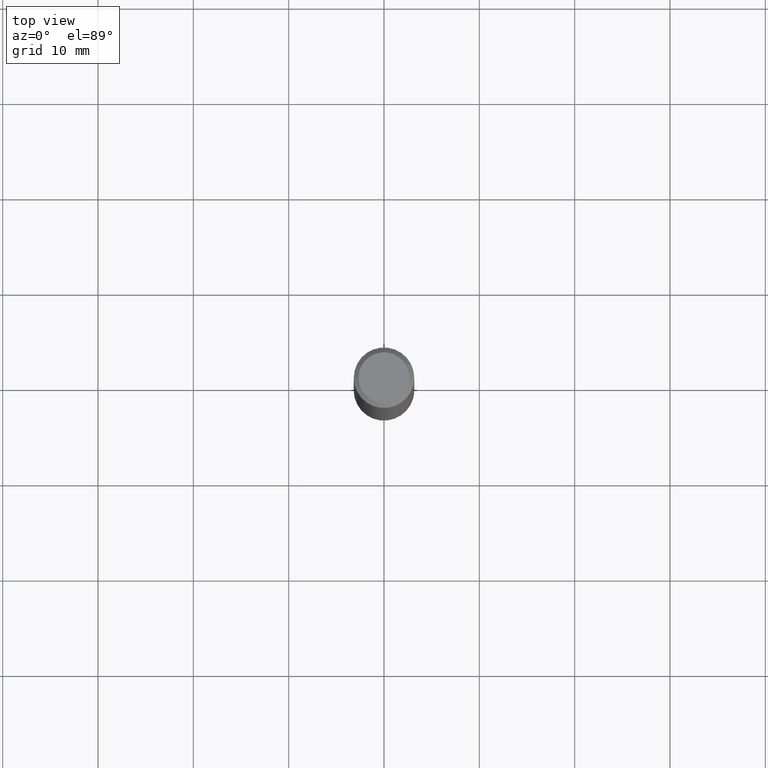
[diagram: clean part render]
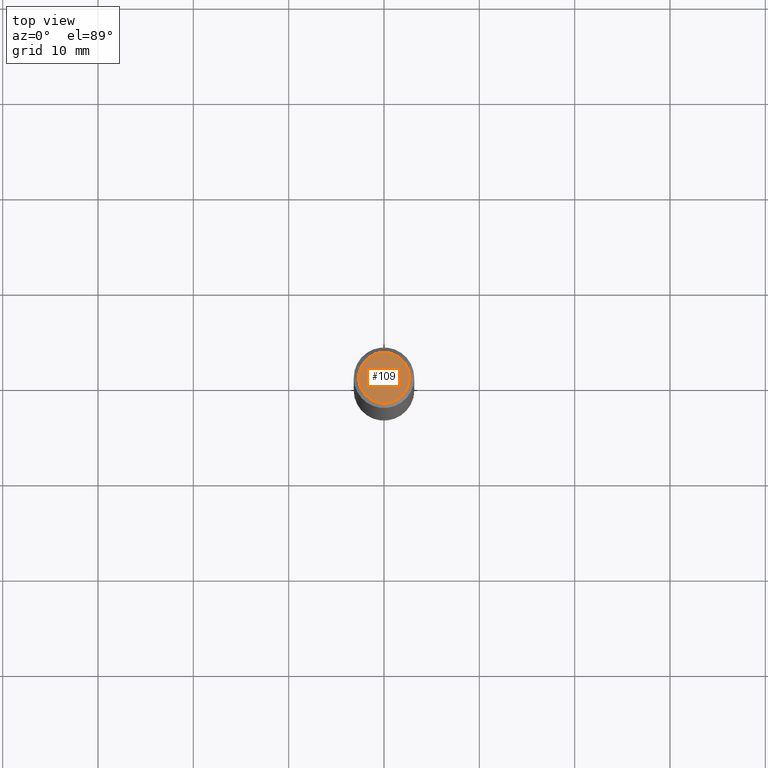
[diagram: same view with one face highlighted and labeled with its STEP entity id]
A machine part, top view. The second image highlights one B-rep face of the part: STEP entity #109.
In plain terms, the highlighted planar face has unit normal (0, -0, -1).
Its self-contained STEP definition (entity closure, byte-faithful):
#45 = DIRECTION ( 'NONE',  ( 1.000000000000000000, -6.982962677686265922E-15, 4.876176775795935793E-29 ) ) ;
#74 = AXIS2_PLACEMENT_3D ( 'NONE', #379, #201, #331 ) ;
#109 = ADVANCED_FACE ( 'NONE', ( #358 ), #298, .F. ) ;
#110 = CARTESIAN_POINT ( 'NONE',  ( 7.332110811570565452E-16, 0.1049999999999998018, -3.666055405785296038E-16 ) ) ;
#111 = CIRCLE ( 'NONE', #74, 0.1049999999999998018 ) ;
#115 = ORIENTED_EDGE ( 'NONE', *, *, #149, .T. ) ;
#149 = EDGE_CURVE ( 'NONE', #205, #272, #277, .T. ) ;
#156 = AXIS2_PLACEMENT_3D ( 'NONE', #110, #361, #382 ) ;
#176 = EDGE_CURVE ( 'NONE', #272, #205, #111, .T. ) ;
#191 = ORIENTED_EDGE ( 'NONE', *, *, #176, .T. ) ;
#198 = CARTESIAN_POINT ( 'NONE',  ( 0.000000000000000000, 0.000000000000000000, 0.000000000000000000 ) ) ;
#201 = DIRECTION ( 'NONE',  ( -2.445468806185136597E-29, 3.491481338843145583E-15, 1.000000000000000000 ) ) ;
#205 = VERTEX_POINT ( 'NONE', #343 ) ;
#209 = DIRECTION ( 'NONE',  ( -2.445468806185136597E-29, 3.491481338843145583E-15, 1.000000000000000000 ) ) ;
#225 = EDGE_LOOP ( 'NONE', ( #191, #115 ) ) ;
#272 = VERTEX_POINT ( 'NONE', #310 ) ;
#277 = CIRCLE ( 'NONE', #352, 0.1049999999999998018 ) ;
#298 = PLANE ( 'NONE',  #156 ) ;
#310 = CARTESIAN_POINT ( 'NONE',  ( -0.1049999999999998018, 7.681258945454876027E-16, -5.249639473182157468E-30 ) ) ;
#331 = DIRECTION ( 'NONE',  ( 1.000000000000000000, -6.982962677686265922E-15, 4.876176775795935793E-29 ) ) ;
#343 = CARTESIAN_POINT ( 'NONE',  ( 0.1049999999999998018, -8.238720831321560867E-16, 5.444276250344140956E-30 ) ) ;
#352 = AXIS2_PLACEMENT_3D ( 'NONE', #198, #209, #45 ) ;
#358 = FACE_OUTER_BOUND ( 'NONE', #225, .T. ) ;
#361 = DIRECTION ( 'NONE',  ( 2.438088387897960049E-29, -3.491481338843145188E-15, -1.000000000000000000 ) ) ;
#379 = CARTESIAN_POINT ( 'NONE',  ( 0.000000000000000000, 0.000000000000000000, 0.000000000000000000 ) ) ;
#382 = DIRECTION ( 'NONE',  ( -1.000000000000000000, 6.982962677686265922E-15, -4.876176775795935793E-29 ) ) ;